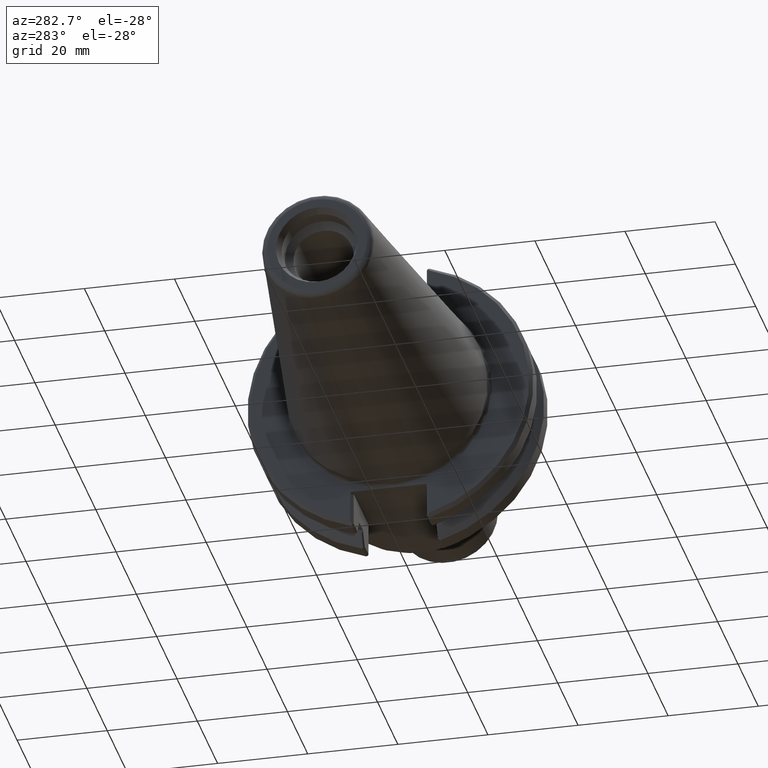
[diagram: clean part render]
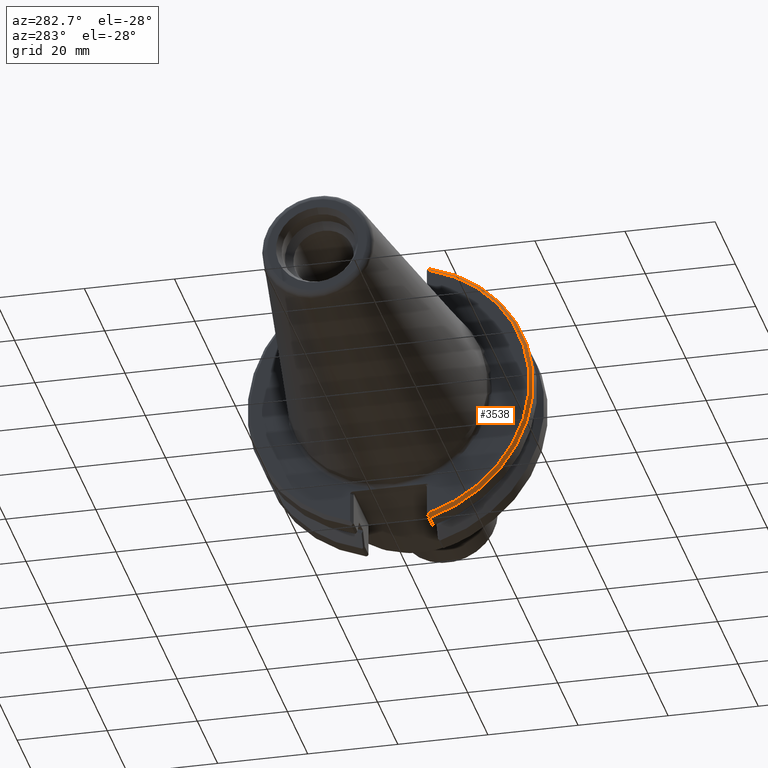
[diagram: same view with one face highlighted and labeled with its STEP entity id]
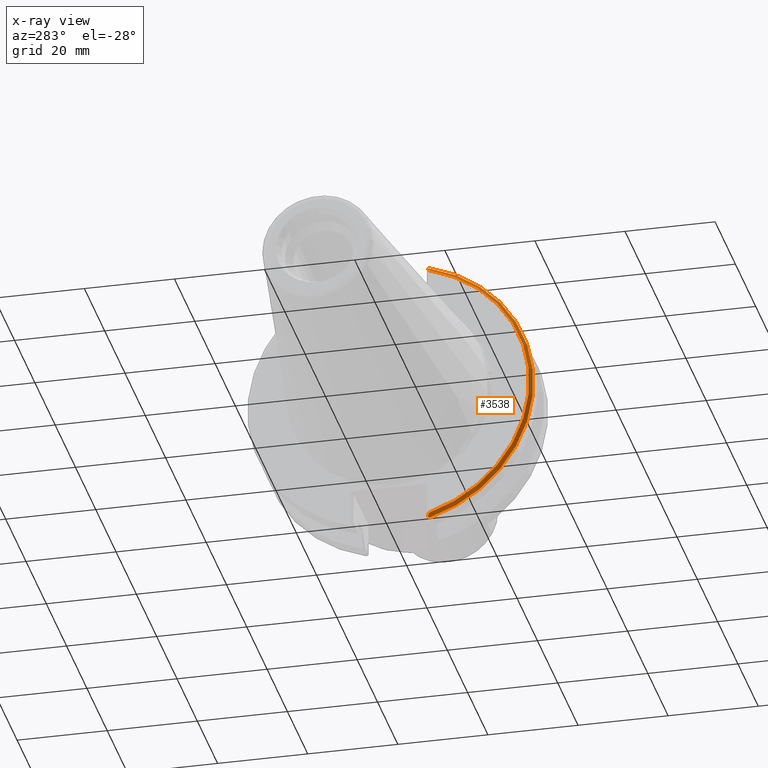
[diagram: x-ray of the same camera — body ghosted, the highlighted face saturated]
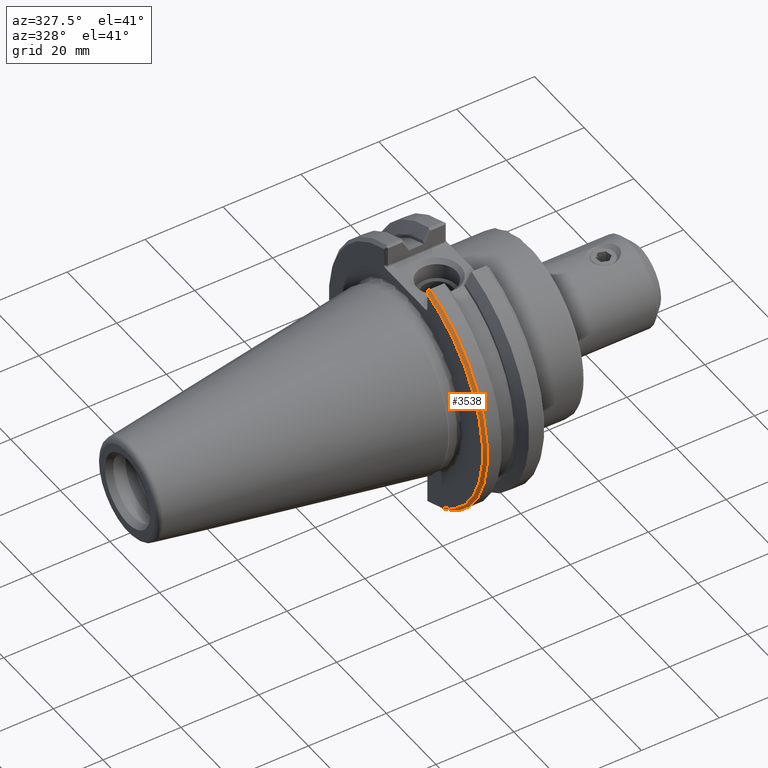
[diagram: same view with one face highlighted and labeled with its STEP entity id]
A machine part, auxiliary view. The second image highlights one B-rep face of the part: STEP entity #3538.
The next image is the same camera in x-ray: the body ghosted, the highlighted face saturated — about 0% of this face is hidden behind the body in this view.
A second angle (auxiliary view) of the same face is appended — the face is thin or edge-on in the first view.
In plain terms, the highlighted conical surface has half-angle 45 deg.
Its self-contained STEP definition (entity closure, byte-faithful):
#1928=CARTESIAN_POINT('',(0.141405589067563,-0.328594410932156,1.191941480854515));
#1929=VERTEX_POINT('',#1928);
#1936=CARTESIAN_POINT('',(0.155,-0.339628138321233,1.20297661143534));
#1937=VERTEX_POINT('',#1936);
#1938=CARTESIAN_POINT('',(0.141405589067563,-0.328594410932156,1.191941480854515));
#1939=CARTESIAN_POINT('',(0.148153824798404,-0.334081111200168,1.197428878882429));
#1940=CARTESIAN_POINT('',(0.155,-0.339628138321233,1.20297661143534));
#1948=(BOUNDED_CURVE()B_SPLINE_CURVE(2,(#1938,#1939,#1940),.UNSPECIFIED.,.F.,.U.)B_SPLINE_CURVE_WITH_KNOTS((3,3),(0.063978137260798,0.116148112210684),.UNSPECIFIED.)CURVE()GEOMETRIC_REPRESENTATION_ITEM()RATIONAL_B_SPLINE_CURVE((1.000048307404884,1.00004384946267,1.0))REPRESENTATION_ITEM(''));
#1949=EDGE_CURVE('',#1929,#1937,#1948,.T.);
#2766=CARTESIAN_POINT('',(0.125,-0.344999999999719,1.170202973846928));
#2767=VERTEX_POINT('',#2766);
#2774=CARTESIAN_POINT('',(0.125,-0.344999999999719,1.170202973846928));
#2775=CARTESIAN_POINT('',(0.133127305286629,-0.33687269471309,1.181072227350668));
#2776=CARTESIAN_POINT('',(0.141405589067563,-0.328594410932156,1.191941480854515));
#2777=B_SPLINE_CURVE_WITH_KNOTS('',2,(#2774,#2775,#2776),.UNSPECIFIED.,.F.,.U.,(3,3),(0.0,0.081080208226758),.UNSPECIFIED.);
#2778=EDGE_CURVE('',#2767,#1929,#2777,.T.);
#2889=CARTESIAN_POINT('',(0.141405589067566,-0.32859441093218,-1.191941480854512));
#2890=VERTEX_POINT('',#2889);
#2897=CARTESIAN_POINT('',(0.125,-0.344999999999765,-1.170202973846914));
#2898=VERTEX_POINT('',#2897);
#2899=CARTESIAN_POINT('',(0.141405589067566,-0.32859441093218,-1.191941480854512));
#2900=CARTESIAN_POINT('',(0.133127305286678,-0.336872694713085,-1.181072227350721));
#2901=CARTESIAN_POINT('',(0.125,-0.344999999999765,-1.170202973846914));
#2902=B_SPLINE_CURVE_WITH_KNOTS('',2,(#2899,#2900,#2901),.UNSPECIFIED.,.F.,.U.,(3,3),(0.066082901511657,0.147163109738763),.UNSPECIFIED.);
#2903=EDGE_CURVE('',#2890,#2898,#2902,.T.);
#3402=CARTESIAN_POINT('',(0.125,-1.462367E-036,0.0));
#3403=DIRECTION('',(1.0,0.0,0.0));
#3404=DIRECTION('',(0.0,-1.0,0.0));
#3405=AXIS2_PLACEMENT_3D('',#3402,#3403,#3404);
#3406=CIRCLE('',#3405,1.22);
#3407=EDGE_CURVE('',#2767,#2898,#3406,.T.);
#3493=CARTESIAN_POINT('',(0.155,-0.339628138321216,-1.202976611435345));
#3494=VERTEX_POINT('',#3493);
#3501=CARTESIAN_POINT('',(0.155,-0.339628138321252,-1.202976611435335));
#3502=CARTESIAN_POINT('',(0.1481538247985,-0.334081111200266,-1.197428878882502));
#3503=CARTESIAN_POINT('',(0.141405589067566,-0.32859441093218,-1.191941480854512));
#3511=(BOUNDED_CURVE()B_SPLINE_CURVE(2,(#3501,#3502,#3503),.UNSPECIFIED.,.F.,.U.)B_SPLINE_CURVE_WITH_KNOTS((3,3),(0.0,0.052169974950015),.UNSPECIFIED.)CURVE()GEOMETRIC_REPRESENTATION_ITEM()RATIONAL_B_SPLINE_CURVE((1.0,1.000043849450855,1.000048307391867))REPRESENTATION_ITEM(''));
#3512=EDGE_CURVE('',#3494,#2890,#3511,.T.);
#3519=CARTESIAN_POINT('',(0.14,-1.444888E-036,0.0));
#3520=DIRECTION('',(1.0,1.165233E-036,0.0));
#3521=DIRECTION('',(0.0,-1.0,0.0));
#3522=AXIS2_PLACEMENT_3D('',#3519,#3520,#3521);
#3523=CONICAL_SURFACE('',#3522,1.235,44.999999999806086);
#3524=ORIENTED_EDGE('',*,*,#3512,.F.);
#3525=CARTESIAN_POINT('',(0.155,-1.427410E-036,0.0));
#3526=DIRECTION('',(-1.0,1.624514E-013,0.0));
#3527=DIRECTION('',(-1.624514E-013,-1.0,0.0));
#3528=AXIS2_PLACEMENT_3D('',#3525,#3526,#3527);
#3529=CIRCLE('',#3528,1.25);
#3530=EDGE_CURVE('',#3494,#1937,#3529,.T.);
#3531=ORIENTED_EDGE('',*,*,#3530,.T.);
#3532=ORIENTED_EDGE('',*,*,#1949,.F.);
#3533=ORIENTED_EDGE('',*,*,#2778,.F.);
#3534=ORIENTED_EDGE('',*,*,#3407,.T.);
#3535=ORIENTED_EDGE('',*,*,#2903,.F.);
#3536=EDGE_LOOP('',(#3524,#3531,#3532,#3533,#3534,#3535));
#3537=FACE_OUTER_BOUND('',#3536,.T.);
#3538=ADVANCED_FACE('',(#3537),#3523,.T.);